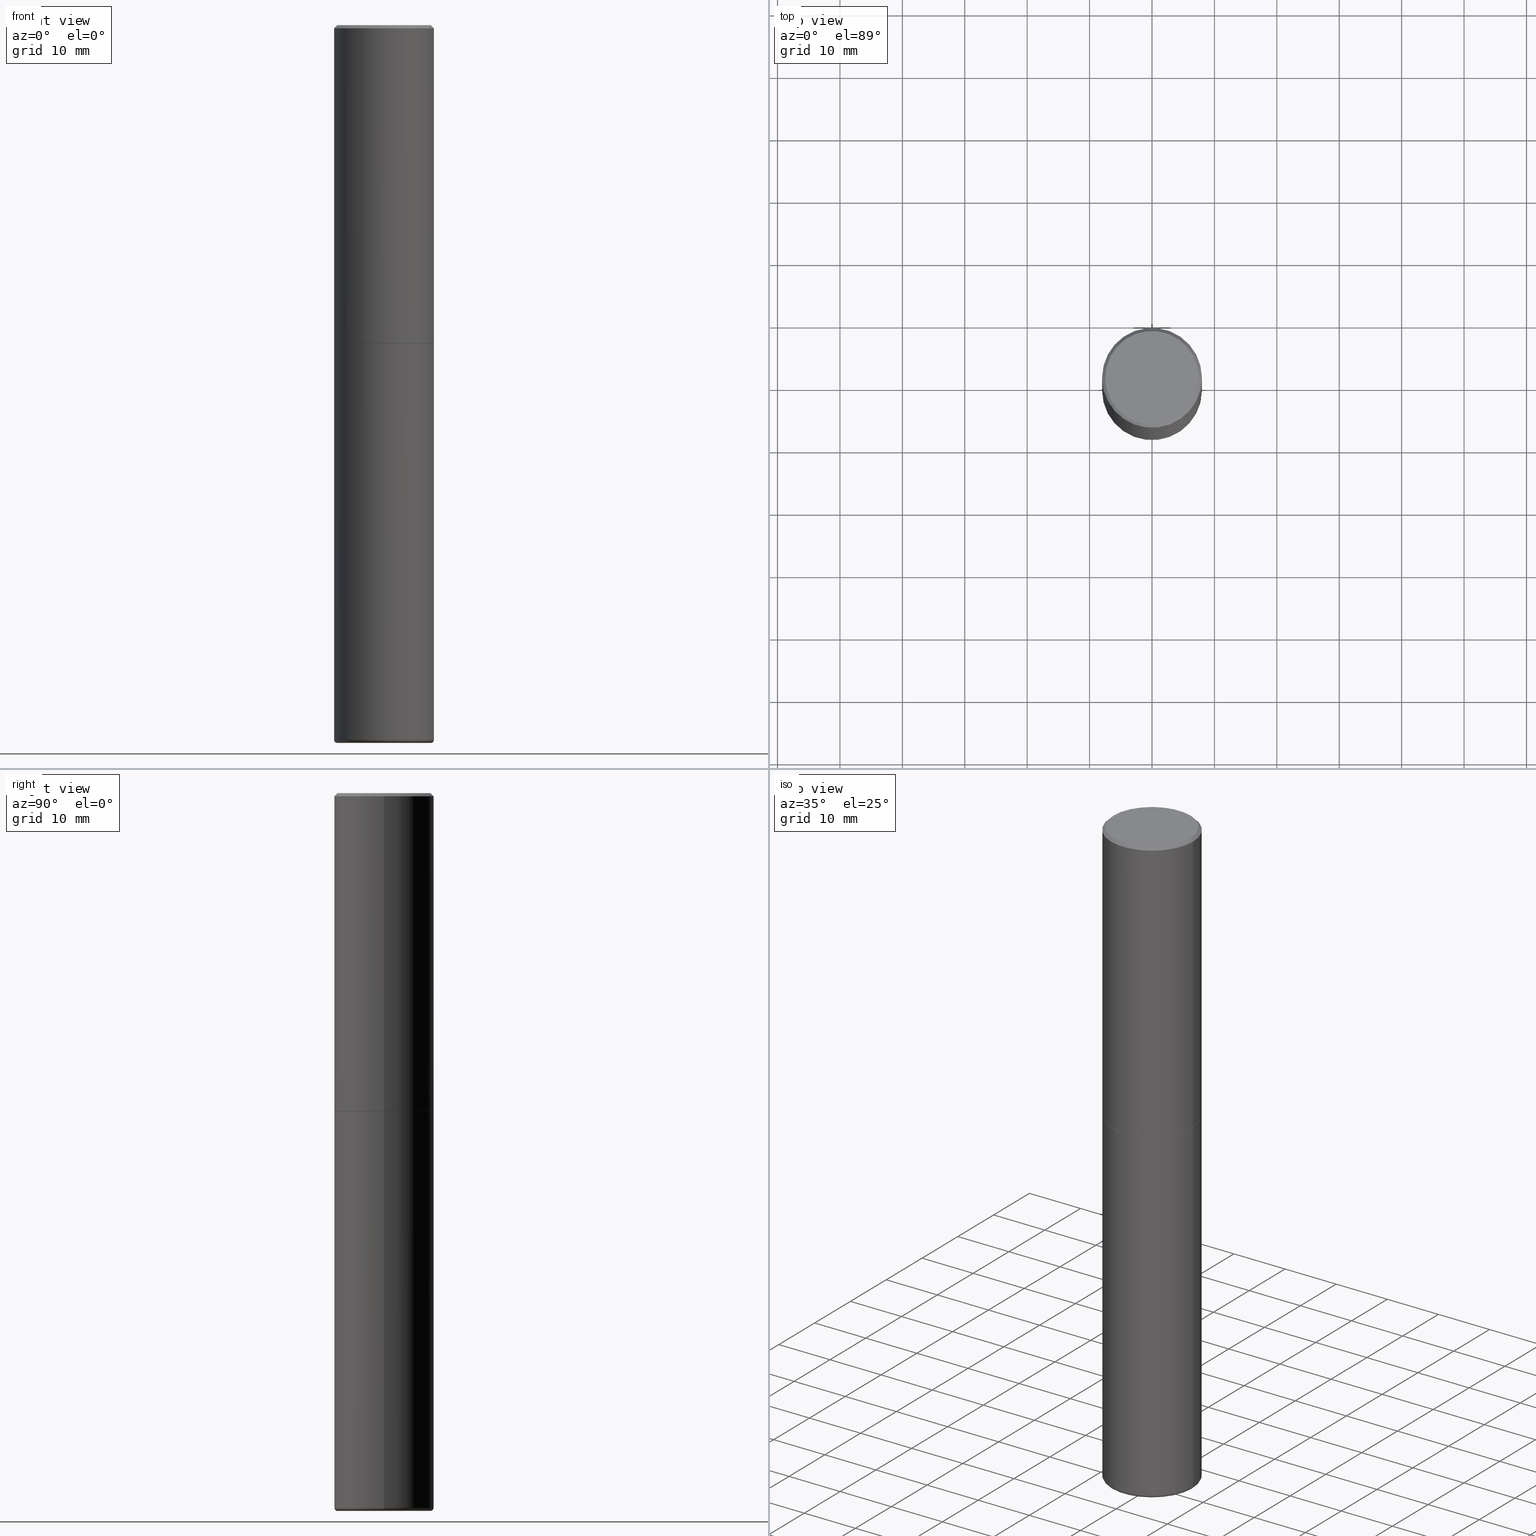
[diagram: canonical four-view strip — front | top / right | iso, engineering-drawing reading convention]
A machine part, canonical four-view strip (front | top / right | iso — engineering-drawing reading convention). The complete STEP part file that produces these views, byte-faithful:
ISO-10303-21;
HEADER;
FILE_DESCRIPTION (( 'STEP AP203' ),
    '1' );
FILE_NAME ('74778.STEP',
    '2024-05-02T19:17:48',
    ( '' ),
    ( '' ),
    'SwSTEP 2.0',
    'SolidWorks 2023',
    '' );
FILE_SCHEMA (( 'CONFIG_CONTROL_DESIGN' ));
ENDSEC;

DATA;
#1 = CLOSED_SHELL ( 'NONE', ( #200, #348, #6, #238, #89, #167 ) ) ;
#2 = LOCAL_TIME ( 15, 17, 48.00000000000000000, #401 ) ;
#3 = LINE ( 'NONE', #349, #84 ) ;
#4 = ORIENTED_EDGE ( 'NONE', *, *, #50, .F. ) ;
#5 = DESIGN_CONTEXT ( 'detailed design', #267, 'design' ) ;
#6 = ADVANCED_FACE ( 'NONE', ( #291 ), #327, .F. ) ;
#7 = FACE_OUTER_BOUND ( 'NONE', #158, .T. ) ;
#8 = CARTESIAN_POINT ( 'NONE',  ( -0.3149499999999996747, -1.350139438109458461E-14, -4.507900000000000240 ) ) ;
#9 = LINE ( 'NONE', #214, #45 ) ;
#10 = CARTESIAN_POINT ( 'NONE',  ( 1.107210456688382074E-28, -1.580803090974622074E-14, -4.527599999999998737 ) ) ;
#11 = VERTEX_POINT ( 'NONE', #8 ) ;
#12 = CIRCLE ( 'NONE', #87, 0.2949499999999997679 ) ;
#13 = SECURITY_CLASSIFICATION ( '', '', #334 ) ;
#14 = EDGE_CURVE ( 'NONE', #262, #311, #381, .T. ) ;
#15 = APPROVAL_STATUS ( 'not_yet_approved' ) ;
#16 = EDGE_CURVE ( 'NONE', #122, #355, #128, .T. ) ;
#17 = CIRCLE ( 'NONE', #251, 0.01969999999999931528 ) ;
#18 = CC_DESIGN_DATE_AND_TIME_ASSIGNMENT ( #366, #299, ( #85 ) ) ;
#19 = SHAPE_DEFINITION_REPRESENTATION ( #377, #82 ) ;
#20 = CARTESIAN_POINT ( 'NONE',  ( 4.890937612370289799E-31, -6.982962677686315028E-17, -0.02000000000000006981 ) ) ;
#21 = CLOSED_SHELL ( 'NONE', ( #306, #164, #336, #143, #274, #156, #66, #177 ) ) ;
#22 = CONICAL_SURFACE ( 'NONE', #98, 0.3149499999999999522, 0.7853981633974469467 ) ;
#23 = LOCAL_TIME ( 15, 17, 48.00000000000000000, #198 ) ;
#24 = APPROVAL ( #342, 'UNSPECIFIED' ) ;
#25 = CARTESIAN_POINT ( 'NONE',  ( -0.3139500000000000068, -4.779796461344316734E-15, -2.007899999999999796 ) ) ;
#26 = EDGE_LOOP ( 'NONE', ( #383, #114, #231, #233 ) ) ;
#27 = ORIENTED_EDGE ( 'NONE', *, *, #389, .T. ) ;
#28 = ORIENTED_EDGE ( 'NONE', *, *, #116, .F. ) ;
#29 = AXIS2_PLACEMENT_3D ( 'NONE', #100, #362, #33 ) ;
#30 = LINE ( 'NONE', #258, #216 ) ;
#31 = ORIENTED_EDGE ( 'NONE', *, *, #389, .F. ) ;
#32 = DIRECTION ( 'NONE',  ( -2.445468806185136597E-29, 3.491481338843145583E-15, 1.000000000000000000 ) ) ;
#33 = DIRECTION ( 'NONE',  ( -1.000000000000000000, 6.982962677686265922E-15, -4.876176775795935793E-29 ) ) ;
#34 = CARTESIAN_POINT ( 'NONE',  ( -0.2952500000000000124, -1.360577393175455947E-14, -4.527599999999998737 ) ) ;
#35 = DIRECTION ( 'NONE',  ( -2.445468806185136877E-29, 3.491481338843145188E-15, 1.000000000000000000 ) ) ;
#36 = DIRECTION ( 'NONE',  ( 0.000000000000000000, 0.000000000000000000, 1.000000000000000000 ) ) ;
#37 = AXIS2_PLACEMENT_3D ( 'NONE', #69, #329, #127 ) ;
#38 = APPROVAL_PERSON_ORGANIZATION ( #305, #374, #406 ) ;
#39 = FACE_OUTER_BOUND ( 'NONE', #67, .T. ) ;
#40 = FACE_OUTER_BOUND ( 'NONE', #385, .T. ) ;
#41 = DIRECTION ( 'NONE',  ( -2.445468806185136597E-29, 3.491481338843145583E-15, 1.000000000000000000 ) ) ;
#42 = PERSON_AND_ORGANIZATION ( #195, #304 ) ;
#43 = EDGE_CURVE ( 'NONE', #311, #262, #332, .T. ) ;
#44 = PERSON_AND_ORGANIZATION ( #195, #304 ) ;
#45 = VECTOR ( 'NONE', #248, 39.37007874015748143 ) ;
#46 = CARTESIAN_POINT ( 'NONE',  ( 4.910256815939135870E-29, -7.010545380263151710E-15, -2.007899999999999796 ) ) ;
#47 = CARTESIAN_POINT ( 'NONE',  ( -0.3139500000000000068, -4.774498006996093543E-15, -2.007899999999999796 ) ) ;
#48 = AXIS2_PLACEMENT_3D ( 'NONE', #229, #399, #144 ) ;
#49 = DIRECTION ( 'NONE',  ( 1.000000000000000000, -6.982962677686265922E-15, 4.876176775795935232E-29 ) ) ;
#50 = EDGE_CURVE ( 'NONE', #56, #186, #204, .T. ) ;
#51 = CC_DESIGN_PERSON_AND_ORGANIZATION_ASSIGNMENT ( #166, #73, ( #124 ) ) ;
#52 = PERSON_AND_ORGANIZATION ( #195, #304 ) ;
#53 = DIRECTION ( 'NONE',  ( 1.000000000000000000, -6.982962677686266711E-15, 0.000000000000000000 ) ) ;
#54 = EDGE_LOOP ( 'NONE', ( #228, #217, #88, #160 ) ) ;
#55 = FACE_OUTER_BOUND ( 'NONE', #324, .T. ) ;
#56 = VERTEX_POINT ( 'NONE', #163 ) ;
#57 = DIRECTION ( 'NONE',  ( 1.000000000000000000, -6.982962677686269866E-15, 0.000000000000000000 ) ) ;
#58 = EDGE_LOOP ( 'NONE', ( #301, #221 ) ) ;
#59 = EDGE_CURVE ( 'NONE', #150, #416, #12, .T. ) ;
#60 = DIRECTION ( 'NONE',  ( -2.445468806185136597E-29, 3.491481338843145583E-15, 1.000000000000000000 ) ) ;
#61 = ORIENTED_EDGE ( 'NONE', *, *, #132, .F. ) ;
#62 = AXIS2_PLACEMENT_3D ( 'NONE', #361, #149, #86 ) ;
#63 = LOCAL_TIME ( 15, 17, 48.00000000000000000, #113 ) ;
#64 = CARTESIAN_POINT ( 'NONE',  ( 0.000000000000000000, 0.000000000000000000, 0.000000000000000000 ) ) ;
#65 = ORIENTED_EDGE ( 'NONE', *, *, #325, .F. ) ;
#66 = ADVANCED_FACE ( 'NONE', ( #266 ), #398, .F. ) ;
#67 = EDGE_LOOP ( 'NONE', ( #249, #390 ) ) ;
#68 = DIRECTION ( 'NONE',  ( -1.000000000000000000, 6.982962677686266711E-15, 0.000000000000000000 ) ) ;
#69 = CARTESIAN_POINT ( 'NONE',  ( 1.102392883140197736E-28, -1.573924872737101586E-14, -4.507900000000000240 ) ) ;
#70 = ORIENTED_EDGE ( 'NONE', *, *, #413, .F. ) ;
#71 =( NAMED_UNIT ( * ) SI_UNIT ( $, .STERADIAN. ) SOLID_ANGLE_UNIT ( ) );
#72 = DIRECTION ( 'NONE',  ( -1.000000000000000000, 6.982962677686265922E-15, -4.876176775795935793E-29 ) ) ;
#73 = PERSON_AND_ORGANIZATION_ROLE ( 'design_supplier' ) ;
#74 = AXIS2_PLACEMENT_3D ( 'NONE', #278, #244, #49 ) ;
#75 = CARTESIAN_POINT ( 'NONE',  ( 4.910256815939135870E-29, -7.010545380263151710E-15, -2.007899999999999796 ) ) ;
#76 = CARTESIAN_POINT ( 'NONE',  ( 0.2952500000000000124, -1.780096845795788810E-14, -4.507900000000000240 ) ) ;
#77 = DIRECTION ( 'NONE',  ( -2.445468806185136597E-29, 3.491481338843145583E-15, 1.000000000000000000 ) ) ;
#78 = APPLICATION_PROTOCOL_DEFINITION ( 'international standard', 'config_control_design', 1994, #307 ) ;
#79 = AXIS2_PLACEMENT_3D ( 'NONE', #380, #312, #294 ) ;
#80 = DIRECTION ( 'NONE',  ( -2.445468806185136877E-29, 3.491481338843145188E-15, 1.000000000000000000 ) ) ;
#81 = APPROVAL_ROLE ( '' ) ;
#82 = ADVANCED_BREP_SHAPE_REPRESENTATION ( '74778', ( #250, #400, #411 ), #142 ) ;
#83 = CIRCLE ( 'NONE', #322, 0.3149500000000000077 ) ;
#84 = VECTOR ( 'NONE', #125, 39.37007874015748143 ) ;
#85 = PRODUCT_DEFINITION ( 'UNKNOWN', '', #124, #5 ) ;
#86 = DIRECTION ( 'NONE',  ( 1.000000000000000000, -6.982962677686266711E-15, 0.000000000000000000 ) ) ;
#87 = AXIS2_PLACEMENT_3D ( 'NONE', #137, #77, #276 ) ;
#88 = ORIENTED_EDGE ( 'NONE', *, *, #129, .T. ) ;
#89 = ADVANCED_FACE ( 'NONE', ( #279 ), #187, .T. ) ;
#90 = DIRECTION ( 'NONE',  ( -2.445468806185136597E-29, 3.491481338843145583E-15, 1.000000000000000000 ) ) ;
#91 = ORIENTED_EDGE ( 'NONE', *, *, #132, .T. ) ;
#92 = CARTESIAN_POINT ( 'NONE',  ( 1.102392883140197736E-28, -1.573924872737101586E-14, -4.507900000000000240 ) ) ;
#93 = ORIENTED_EDGE ( 'NONE', *, *, #254, .T. ) ;
#94 = DIRECTION ( 'NONE',  ( -2.445468806185136877E-29, 3.491481338843145188E-15, 1.000000000000000000 ) ) ;
#95 = VERTEX_POINT ( 'NONE', #260 ) ;
#96 = EDGE_CURVE ( 'NONE', #186, #56, #310, .T. ) ;
#97 = ORIENTED_EDGE ( 'NONE', *, *, #16, .F. ) ;
#98 = AXIS2_PLACEMENT_3D ( 'NONE', #20, #218, #68 ) ;
#99 = DIRECTION ( 'NONE',  ( 2.445468806185136597E-29, -3.491481338843145583E-15, -1.000000000000000000 ) ) ;
#100 = CARTESIAN_POINT ( 'NONE',  ( 4.910256815939135870E-29, -7.010545380263151710E-15, -2.007899999999999796 ) ) ;
#101 = CC_DESIGN_DATE_AND_TIME_ASSIGNMENT ( #105, #209, ( #13 ) ) ;
#102 = ORIENTED_EDGE ( 'NONE', *, *, #343, .T. ) ;
#103 = PERSON_AND_ORGANIZATION ( #195, #304 ) ;
#104 = DIRECTION ( 'NONE',  ( -2.445468806185136597E-29, 3.491481338843145583E-15, 1.000000000000000000 ) ) ;
#105 = DATE_AND_TIME ( #268, #170 ) ;
#106 = DIRECTION ( 'NONE',  ( -2.438088387897960049E-29, 3.491481338843145188E-15, 1.000000000000000000 ) ) ;
#107 = AXIS2_PLACEMENT_3D ( 'NONE', #414, #115, #72 ) ;
#108 = EDGE_CURVE ( 'NONE', #416, #150, #402, .T. ) ;
#109 = CARTESIAN_POINT ( 'NONE',  ( 0.2949499999999997679, -2.127023677808858891E-15, 1.835460370743323251E-16 ) ) ;
#110 = CARTESIAN_POINT ( 'NONE',  ( -4.488561081641444621E-45, 6.408475632635922878E-31, 1.835460370743176819E-16 ) ) ;
#111 = PERSON_AND_ORGANIZATION_ROLE ( 'creator' ) ;
#112 = CARTESIAN_POINT ( 'NONE',  ( 0.3149499999999996747, -1.793853282270830731E-14, -4.507900000000000240 ) ) ;
#113 = COORDINATED_UNIVERSAL_TIME_OFFSET ( 5, 0, .BEHIND. ) ;
#114 = ORIENTED_EDGE ( 'NONE', *, *, #213, .T. ) ;
#115 = DIRECTION ( 'NONE',  ( 2.438088387897960049E-29, -3.491481338843145188E-15, -1.000000000000000000 ) ) ;
#116 = EDGE_CURVE ( 'NONE', #95, #186, #270, .T. ) ;
#117 = APPROVAL ( #375, 'UNSPECIFIED' ) ;
#118 = VECTOR ( 'NONE', #35, 39.37007874015748143 ) ;
#119 = AXIS2_PLACEMENT_3D ( 'NONE', #76, #371, #273 ) ;
#120 = CARTESIAN_POINT ( 'NONE',  ( 4.907811347132950267E-29, -7.007053898924307914E-15, -2.006899999999999906 ) ) ;
#121 = DIRECTION ( 'NONE',  ( 1.000000000000000000, -6.982962677686267499E-15, 0.000000000000000000 ) ) ;
#122 = VERTEX_POINT ( 'NONE', #112 ) ;
#123 = AXIS2_PLACEMENT_3D ( 'NONE', #10, #131, #330 ) ;
#124 = PRODUCT_DEFINITION_FORMATION_WITH_SPECIFIED_SOURCE ( 'ANY', '', #240, .NOT_KNOWN. ) ;
#125 = DIRECTION ( 'NONE',  ( 0.7071067811866199593, -2.468850131083015945E-15, 0.7071067811864750752 ) ) ;
#126 = VERTEX_POINT ( 'NONE', #47 ) ;
#127 = DIRECTION ( 'NONE',  ( 1.000000000000000000, -6.982962677686260400E-15, 4.883557194083110659E-29 ) ) ;
#128 = LINE ( 'NONE', #259, #118 ) ;
#129 = EDGE_CURVE ( 'NONE', #150, #56, #174, .T. ) ;
#130 = DIRECTION ( 'NONE',  ( 1.000000000000000000, -6.982962677686269866E-15, 0.000000000000000000 ) ) ;
#131 = DIRECTION ( 'NONE',  ( -2.445468806185136597E-29, 3.491481338843145583E-15, 1.000000000000000000 ) ) ;
#132 = EDGE_CURVE ( 'NONE', #355, #321, #340, .T. ) ;
#133 = CIRCLE ( 'NONE', #308, 0.3149500000000000077 ) ;
#134 = CALENDAR_DATE ( 2024, 2, 5 ) ;
#135 = CARTESIAN_POINT ( 'NONE',  ( 1.107210456688382074E-28, -1.580803090974622074E-14, -4.527599999999998737 ) ) ;
#136 = APPLICATION_PROTOCOL_DEFINITION ( 'international standard', 'config_control_design', 1994, #267 ) ;
#137 = CARTESIAN_POINT ( 'NONE',  ( -4.488561081641444621E-45, 6.408475632635922878E-31, 1.835460370743176819E-16 ) ) ;
#138 = COORDINATED_UNIVERSAL_TIME_OFFSET ( 5, 0, .BEHIND. ) ;
#139 = CARTESIAN_POINT ( 'NONE',  ( 0.000000000000000000, 0.000000000000000000, 0.000000000000000000 ) ) ;
#140 = DIRECTION ( 'NONE',  ( 1.000000000000000000, -6.982962677686266711E-15, 0.000000000000000000 ) ) ;
#141 = VECTOR ( 'NONE', #391, 39.37007874015748143 ) ;
#142 =( GEOMETRIC_REPRESENTATION_CONTEXT ( 3 ) GLOBAL_UNCERTAINTY_ASSIGNED_CONTEXT ( ( #212 ) ) GLOBAL_UNIT_ASSIGNED_CONTEXT ( ( #405, #235, #71 ) ) REPRESENTATION_CONTEXT ( 'NONE', 'WORKASPACE' ) );
#143 = ADVANCED_FACE ( 'NONE', ( #172 ), #22, .T. ) ;
#144 = DIRECTION ( 'NONE',  ( 1.000000000000000000, -6.982962677686266711E-15, 0.000000000000000000 ) ) ;
#145 = DIRECTION ( 'NONE',  ( 1.000000000000000000, -6.982962677686265922E-15, 4.876176775795935793E-29 ) ) ;
#146 = AXIS2_PLACEMENT_3D ( 'NONE', #338, #365, #210 ) ;
#147 = VECTOR ( 'NONE', #417, 39.37007874015748143 ) ;
#148 = ORIENTED_EDGE ( 'NONE', *, *, #232, .F. ) ;
#149 = DIRECTION ( 'NONE',  ( -2.445468806185136597E-29, 3.491481338843145583E-15, 1.000000000000000000 ) ) ;
#150 = VERTEX_POINT ( 'NONE', #341 ) ;
#151 = DIRECTION ( 'NONE',  ( 1.000000000000000000, -6.982962677686266711E-15, 4.876176775795936353E-29 ) ) ;
#152 = ORIENTED_EDGE ( 'NONE', *, *, #129, .F. ) ;
#153 = CC_DESIGN_APPROVAL ( #117, ( #13 ) ) ;
#154 = CYLINDRICAL_SURFACE ( 'NONE', #79, 0.3149500000000001743 ) ;
#155 = EDGE_LOOP ( 'NONE', ( #418, #193, #288, #28 ) ) ;
#156 = ADVANCED_FACE ( 'NONE', ( #404 ), #263, .T. ) ;
#157 = DIRECTION ( 'NONE',  ( 1.000000000000000000, -6.982962677686266711E-15, 0.000000000000000000 ) ) ;
#158 = EDGE_LOOP ( 'NONE', ( #315, #388, #226, #70 ) ) ;
#159 = CARTESIAN_POINT ( 'NONE',  ( 4.907811347132950267E-29, -7.007053898924307914E-15, -2.006899999999999906 ) ) ;
#160 = ORIENTED_EDGE ( 'NONE', *, *, #50, .T. ) ;
#161 = AXIS2_PLACEMENT_3D ( 'NONE', #382, #190, #157 ) ;
#162 = PERSON_AND_ORGANIZATION_ROLE ( 'creator' ) ;
#163 = CARTESIAN_POINT ( 'NONE',  ( -0.3149499999999999522, 2.129454468560426178E-15, -0.02000000000000006981 ) ) ;
#164 = ADVANCED_FACE ( 'NONE', ( #376 ), #345, .T. ) ;
#165 = DIRECTION ( 'NONE',  ( 2.438088387897960049E-29, -3.491481338843145188E-15, -1.000000000000000000 ) ) ;
#166 = PERSON_AND_ORGANIZATION ( #195, #304 ) ;
#167 = ADVANCED_FACE ( 'NONE', ( #178 ), #281, .T. ) ;
#168 = DATE_AND_TIME ( #265, #23 ) ;
#169 = VECTOR ( 'NONE', #80, 39.37007874015748143 ) ;
#170 = LOCAL_TIME ( 15, 17, 48.00000000000000000, #138 ) ;
#171 = CC_DESIGN_PERSON_AND_ORGANIZATION_ASSIGNMENT ( #44, #162, ( #85 ) ) ;
#172 = FACE_OUTER_BOUND ( 'NONE', #54, .T. ) ;
#173 = DIRECTION ( 'NONE',  ( 1.000000000000000000, -6.982962677686266711E-15, 4.876176775795936353E-29 ) ) ;
#174 = LINE ( 'NONE', #208, #378 ) ;
#175 = AXIS2_PLACEMENT_3D ( 'NONE', #135, #264, #335 ) ;
#176 = LOCAL_TIME ( 15, 17, 48.00000000000000000, #194 ) ;
#177 = ADVANCED_FACE ( 'NONE', ( #39 ), #364, .F. ) ;
#178 = FACE_OUTER_BOUND ( 'NONE', #283, .T. ) ;
#179 = CIRCLE ( 'NONE', #62, 0.3139500000000000068 ) ;
#180 = CARTESIAN_POINT ( 'NONE',  ( 0.2952500000000000124, -1.786975064033309297E-14, -4.527599999999998737 ) ) ;
#181 = VERTEX_POINT ( 'NONE', #319 ) ;
#182 = DIRECTION ( 'NONE',  ( -2.445468806185136597E-29, 3.491481338843145583E-15, 1.000000000000000000 ) ) ;
#183 = ORIENTED_EDGE ( 'NONE', *, *, #309, .F. ) ;
#184 = ORIENTED_EDGE ( 'NONE', *, *, #224, .T. ) ;
#185 = CARTESIAN_POINT ( 'NONE',  ( 4.890937612370289799E-31, -6.982962677686315028E-17, -0.02000000000000006981 ) ) ;
#186 = VERTEX_POINT ( 'NONE', #284 ) ;
#187 = TOROIDAL_SURFACE ( 'NONE', #271, 0.2952500000000000124, 0.01969999999999934998 ) ;
#188 = CC_DESIGN_PERSON_AND_ORGANIZATION_ASSIGNMENT ( #199, #205, ( #240 ) ) ;
#189 = EDGE_LOOP ( 'NONE', ( #191, #318, #253, #183 ) ) ;
#190 = DIRECTION ( 'NONE',  ( -2.445468806185136597E-29, 3.491481338843145583E-15, 1.000000000000000000 ) ) ;
#191 = ORIENTED_EDGE ( 'NONE', *, *, #237, .F. ) ;
#192 = DIRECTION ( 'NONE',  ( -2.445468806185136597E-29, 3.491481338843145583E-15, 1.000000000000000000 ) ) ;
#193 = ORIENTED_EDGE ( 'NONE', *, *, #325, .T. ) ;
#194 = COORDINATED_UNIVERSAL_TIME_OFFSET ( 5, 0, .BEHIND. ) ;
#195 = PERSON ( 'UNSPECIFIED', 'UNSPECIFIED', 'UNSPECIFIED', ('UNSPECIFIED'), ('UNSPECIFIED'), ('UNSPECIFIED') ) ;
#196 = CARTESIAN_POINT ( 'NONE',  ( 2.059624841783562486E-15, 0.2949499999999997679, -9.380394023546260134E-16 ) ) ;
#197 = APPROVAL_PERSON_ORGANIZATION ( #337, #24, #395 ) ;
#198 = COORDINATED_UNIVERSAL_TIME_OFFSET ( 5, 0, .BEHIND. ) ;
#199 = PERSON_AND_ORGANIZATION ( #195, #304 ) ;
#200 = ADVANCED_FACE ( 'NONE', ( #40 ), #269, .T. ) ;
#201 = DIRECTION ( 'NONE',  ( 1.000000000000000000, -6.982962677686263555E-15, 0.000000000000000000 ) ) ;
#202 =( LENGTH_UNIT ( ) NAMED_UNIT ( * ) SI_UNIT ( $, .METRE. ) );
#203 = DIRECTION ( 'NONE',  ( -2.445468806185136597E-29, 3.491481338843145583E-15, 1.000000000000000000 ) ) ;
#204 = CIRCLE ( 'NONE', #206, 0.3149499999999999522 ) ;
#205 = PERSON_AND_ORGANIZATION_ROLE ( 'design_owner' ) ;
#206 = AXIS2_PLACEMENT_3D ( 'NONE', #372, #203, #140 ) ;
#207 = CIRCLE ( 'NONE', #415, 0.3149500000000000077 ) ;
#208 = CARTESIAN_POINT ( 'NONE',  ( -0.3149499999999999522, 2.129454468560426178E-15, -0.02000000000000006981 ) ) ;
#209 = DATE_TIME_ROLE ( 'classification_date' ) ;
#210 = DIRECTION ( 'NONE',  ( 1.000000000000000000, -6.982962677686266711E-15, 0.000000000000000000 ) ) ;
#211 = AXIS2_PLACEMENT_3D ( 'NONE', #159, #182, #121 ) ;
#212 = UNCERTAINTY_MEASURE_WITH_UNIT (LENGTH_MEASURE( 1.000000000000000082E-05 ), #405, 'distance_accuracy_value', 'NONE');
#213 = EDGE_CURVE ( 'NONE', #126, #181, #280, .T. ) ;
#214 = CARTESIAN_POINT ( 'NONE',  ( 0.3149499999999999522, -2.230543471175006661E-15, -0.02000000000000006981 ) ) ;
#215 = TOROIDAL_SURFACE ( 'NONE', #37, 0.2952500000000000124, 0.01969999999999934998 ) ;
#216 = VECTOR ( 'NONE', #94, 39.37007874015748143 ) ;
#217 = ORIENTED_EDGE ( 'NONE', *, *, #59, .F. ) ;
#218 = DIRECTION ( 'NONE',  ( 2.445468806185136597E-29, -3.491481338843145583E-15, -1.000000000000000000 ) ) ;
#219 = CARTESIAN_POINT ( 'NONE',  ( 1.102392883140197736E-28, -1.573924872737101586E-14, -4.507900000000000240 ) ) ;
#220 = ORIENTED_EDGE ( 'NONE', *, *, #43, .F. ) ;
#221 = ORIENTED_EDGE ( 'NONE', *, *, #213, .F. ) ;
#222 = CARTESIAN_POINT ( 'NONE',  ( -0.3149500000000002853, -1.300587416574145677E-15, -2.006899999999999906 ) ) ;
#223 = EDGE_LOOP ( 'NONE', ( #102, #350, #148, #297 ) ) ;
#224 = EDGE_CURVE ( 'NONE', #295, #95, #227, .T. ) ;
#225 = CARTESIAN_POINT ( 'NONE',  ( -0.2952500000000000124, -1.364137130003932155E-14, -4.507900000000000240 ) ) ;
#226 = ORIENTED_EDGE ( 'NONE', *, *, #282, .F. ) ;
#227 = CIRCLE ( 'NONE', #367, 0.3149500000000002853 ) ;
#228 = ORIENTED_EDGE ( 'NONE', *, *, #254, .F. ) ;
#229 = CARTESIAN_POINT ( 'NONE',  ( 4.890937612370289799E-31, -6.982962677686315028E-17, -0.02000000000000006981 ) ) ;
#230 = CARTESIAN_POINT ( 'NONE',  ( -0.3149500000000001743, 2.237854346276436774E-15, -1.549218606675783237E-29 ) ) ;
#231 = ORIENTED_EDGE ( 'NONE', *, *, #356, .T. ) ;
#232 = EDGE_CURVE ( 'NONE', #95, #295, #241, .T. ) ;
#233 = ORIENTED_EDGE ( 'NONE', *, *, #224, .F. ) ;
#234 = AXIS2_PLACEMENT_3D ( 'NONE', #46, #106, #145 ) ;
#235 =( NAMED_UNIT ( * ) PLANE_ANGLE_UNIT ( ) SI_UNIT ( $, .RADIAN. ) );
#236 = DIRECTION ( 'NONE',  ( -2.445468806185136597E-29, 3.491481338843145583E-15, 1.000000000000000000 ) ) ;
#237 = EDGE_CURVE ( 'NONE', #311, #11, #17, .T. ) ;
#238 = ADVANCED_FACE ( 'NONE', ( #55 ), #351, .T. ) ;
#239 = DIRECTION ( 'NONE',  ( -2.445468806185136597E-29, 3.491481338843145583E-15, 1.000000000000000000 ) ) ;
#240 = PRODUCT ( '74778', '74778', '', ( #339 ) ) ;
#241 = CIRCLE ( 'NONE', #211, 0.3149500000000002853 ) ;
#242 = DATE_AND_TIME ( #346, #63 ) ;
#243 = DIRECTION ( 'NONE',  ( -2.445468806185136597E-29, 3.491481338843145583E-15, 1.000000000000000000 ) ) ;
#244 = DIRECTION ( 'NONE',  ( -2.445468806185136597E-29, 3.491481338843145583E-15, 1.000000000000000000 ) ) ;
#245 = CC_DESIGN_PERSON_AND_ORGANIZATION_ASSIGNMENT ( #42, #300, ( #13 ) ) ;
#246 = LINE ( 'NONE', #230, #147 ) ;
#247 = ORIENTED_EDGE ( 'NONE', *, *, #309, .T. ) ;
#248 = DIRECTION ( 'NONE',  ( 0.7071067811865465735, -7.319954787623252890E-15, -0.7071067811865484609 ) ) ;
#249 = ORIENTED_EDGE ( 'NONE', *, *, #59, .T. ) ;
#250 = MANIFOLD_SOLID_BREP ( 'Body-Move/Copy2[1]', #1 ) ;
#251 = AXIS2_PLACEMENT_3D ( 'NONE', #225, #357, #290 ) ;
#252 = CC_DESIGN_SECURITY_CLASSIFICATION ( #13, ( #124 ) ) ;
#253 = ORIENTED_EDGE ( 'NONE', *, *, #413, .T. ) ;
#254 = EDGE_CURVE ( 'NONE', #416, #186, #9, .T. ) ;
#255 = CARTESIAN_POINT ( 'NONE',  ( 4.910256815939135870E-29, -7.010545380263151710E-15, -2.007899999999999796 ) ) ;
#256 = EDGE_LOOP ( 'NONE', ( #396, #93, #313, #152 ) ) ;
#257 = ORIENTED_EDGE ( 'NONE', *, *, #116, .T. ) ;
#258 = CARTESIAN_POINT ( 'NONE',  ( -0.3149500000000000077, 2.237854346276435590E-15, -1.549218606675782676E-29 ) ) ;
#259 = CARTESIAN_POINT ( 'NONE',  ( 0.3149500000000000077, -2.199284095337289871E-15, 1.535751875536930130E-29 ) ) ;
#260 = CARTESIAN_POINT ( 'NONE',  ( 0.3149500000000002853, -9.206337994261599363E-15, -2.006899999999999906 ) ) ;
#261 = LINE ( 'NONE', #25, #141 ) ;
#262 = VERTEX_POINT ( 'NONE', #180 ) ;
#263 = CONICAL_SURFACE ( 'NONE', #146, 0.3139500000000000068, 0.7853981633975507526 ) ;
#264 = DIRECTION ( 'NONE',  ( -2.445468806185136597E-29, 3.491481338843145583E-15, 1.000000000000000000 ) ) ;
#265 = CALENDAR_DATE ( 2024, 2, 5 ) ;
#266 = FACE_OUTER_BOUND ( 'NONE', #58, .T. ) ;
#267 = APPLICATION_CONTEXT ( 'configuration controlled 3d designs of mechanical parts and assemblies' ) ;
#268 = CALENDAR_DATE ( 2024, 2, 5 ) ;
#269 = CYLINDRICAL_SURFACE ( 'NONE', #373, 0.3149500000000000077 ) ;
#270 = LINE ( 'NONE', #408, #169 ) ;
#271 = AXIS2_PLACEMENT_3D ( 'NONE', #333, #41, #292 ) ;
#272 = CIRCLE ( 'NONE', #119, 0.01969999999999931528 ) ;
#273 = DIRECTION ( 'NONE',  ( 1.000000000000000000, -6.982962677686373207E-15, 0.000000000000000000 ) ) ;
#274 = ADVANCED_FACE ( 'NONE', ( #316 ), #154, .T. ) ;
#275 = CALENDAR_DATE ( 2024, 2, 5 ) ;
#276 = DIRECTION ( 'NONE',  ( 1.000000000000000000, -6.982962677686265922E-15, 4.874125435057325556E-29 ) ) ;
#277 = DIRECTION ( 'NONE',  ( 1.000000000000000000, -6.982962677686265922E-15, 4.874125435057325556E-29 ) ) ;
#278 = CARTESIAN_POINT ( 'NONE',  ( 0.000000000000000000, 0.000000000000000000, 0.000000000000000000 ) ) ;
#279 = FACE_OUTER_BOUND ( 'NONE', #189, .T. ) ;
#280 = CIRCLE ( 'NONE', #344, 0.3139500000000000068 ) ;
#281 = PLANE ( 'NONE',  #107 ) ;
#282 = EDGE_CURVE ( 'NONE', #122, #11, #133, .T. ) ;
#283 = EDGE_LOOP ( 'NONE', ( #403, #220 ) ) ;
#284 = CARTESIAN_POINT ( 'NONE',  ( 0.3149499999999999522, -2.230543471175006661E-15, -0.02000000000000006981 ) ) ;
#285 = DIRECTION ( 'NONE',  ( 1.000000000000000000, -6.982962677686267499E-15, 0.000000000000000000 ) ) ;
#286 = EDGE_LOOP ( 'NONE', ( #91, #27 ) ) ;
#287 = FACE_OUTER_BOUND ( 'NONE', #256, .T. ) ;
#288 = ORIENTED_EDGE ( 'NONE', *, *, #96, .F. ) ;
#289 = AXIS2_PLACEMENT_3D ( 'NONE', #75, #243, #201 ) ;
#290 = DIRECTION ( 'NONE',  ( -1.000000000000000000, 7.105427357600976615E-15, 0.000000000000000000 ) ) ;
#291 = FACE_OUTER_BOUND ( 'NONE', #286, .T. ) ;
#292 = DIRECTION ( 'NONE',  ( 1.000000000000000000, -6.982962677686260400E-15, 4.883557194083110659E-29 ) ) ;
#293 = DIMENSIONAL_EXPONENTS ( 1.000000000000000000, 0.000000000000000000, 0.000000000000000000, 0.000000000000000000, 0.000000000000000000, 0.000000000000000000, 0.000000000000000000 ) ;
#294 = DIRECTION ( 'NONE',  ( 1.000000000000000000, -6.982962677686265922E-15, 4.876176775795935232E-29 ) ) ;
#295 = VERTEX_POINT ( 'NONE', #222 ) ;
#296 = DIRECTION ( 'NONE',  ( -1.000000000000000000, 6.982962677686266711E-15, 0.000000000000000000 ) ) ;
#297 = ORIENTED_EDGE ( 'NONE', *, *, #356, .F. ) ;
#298 = AXIS2_PLACEMENT_3D ( 'NONE', #110, #239, #277 ) ;
#299 = DATE_TIME_ROLE ( 'creation_date' ) ;
#300 = PERSON_AND_ORGANIZATION_ROLE ( 'classification_officer' ) ;
#301 = ORIENTED_EDGE ( 'NONE', *, *, #343, .F. ) ;
#302 = LENGTH_MEASURE_WITH_UNIT ( LENGTH_MEASURE( 0.02539999999999999897 ), #202 );
#303 = AXIS2_PLACEMENT_3D ( 'NONE', #64, #192, #151 ) ;
#304 = ORGANIZATION ( 'UNSPECIFIED', 'UNSPECIFIED', '' ) ;
#305 = PERSON_AND_ORGANIZATION ( #195, #304 ) ;
#306 = ADVANCED_FACE ( 'NONE', ( #354 ), #347, .T. ) ;
#307 = APPLICATION_CONTEXT ( 'configuration controlled 3d designs of mechanical parts and assemblies' ) ;
#308 = AXIS2_PLACEMENT_3D ( 'NONE', #92, #32, #57 ) ;
#309 = EDGE_CURVE ( 'NONE', #11, #122, #83, .T. ) ;
#310 = CIRCLE ( 'NONE', #48, 0.3149499999999999522 ) ;
#311 = VERTEX_POINT ( 'NONE', #34 ) ;
#312 = DIRECTION ( 'NONE',  ( -2.445468806185136597E-29, 3.491481338843145583E-15, 1.000000000000000000 ) ) ;
#313 = ORIENTED_EDGE ( 'NONE', *, *, #96, .T. ) ;
#314 = EDGE_CURVE ( 'NONE', #126, #295, #261, .T. ) ;
#315 = ORIENTED_EDGE ( 'NONE', *, *, #14, .T. ) ;
#316 = FACE_OUTER_BOUND ( 'NONE', #317, .T. ) ;
#317 = EDGE_LOOP ( 'NONE', ( #65, #184, #257, #4 ) ) ;
#318 = ORIENTED_EDGE ( 'NONE', *, *, #43, .T. ) ;
#319 = CARTESIAN_POINT ( 'NONE',  ( 0.3139500000000000068, -9.202846512922754778E-15, -2.007899999999999796 ) ) ;
#320 = DIRECTION ( 'NONE',  ( 1.000000000000000000, -6.982962677686263555E-15, 0.000000000000000000 ) ) ;
#321 = VERTEX_POINT ( 'NONE', #326 ) ;
#322 = AXIS2_PLACEMENT_3D ( 'NONE', #219, #60, #130 ) ;
#323 = CC_DESIGN_APPROVAL ( #374, ( #124 ) ) ;
#324 = EDGE_LOOP ( 'NONE', ( #392, #247, #358, #31 ) ) ;
#325 = EDGE_CURVE ( 'NONE', #295, #56, #246, .T. ) ;
#326 = CARTESIAN_POINT ( 'NONE',  ( -0.3149500000000000077, -9.137042707540648986E-15, -2.007899999999999796 ) ) ;
#327 = PLANE ( 'NONE',  #29 ) ;
#328 = CC_DESIGN_PERSON_AND_ORGANIZATION_ASSIGNMENT ( #103, #111, ( #124 ) ) ;
#329 = DIRECTION ( 'NONE',  ( -2.445468806185136597E-29, 3.491481338843145583E-15, 1.000000000000000000 ) ) ;
#330 = DIRECTION ( 'NONE',  ( 1.000000000000000000, -6.982962677686273021E-15, 0.000000000000000000 ) ) ;
#331 = APPROVAL_DATE_TIME ( #369, #24 ) ;
#332 = CIRCLE ( 'NONE', #175, 0.2952500000000000124 ) ;
#333 = CARTESIAN_POINT ( 'NONE',  ( 1.102392883140197736E-28, -1.573924872737101586E-14, -4.507900000000000240 ) ) ;
#334 = SECURITY_CLASSIFICATION_LEVEL ( 'unclassified' ) ;
#335 = DIRECTION ( 'NONE',  ( 1.000000000000000000, -6.982962677686273021E-15, 0.000000000000000000 ) ) ;
#336 = ADVANCED_FACE ( 'NONE', ( #287 ), #394, .T. ) ;
#337 = PERSON_AND_ORGANIZATION ( #195, #304 ) ;
#338 = CARTESIAN_POINT ( 'NONE',  ( 4.910256815939135870E-29, -7.010545380263151710E-15, -2.007899999999999796 ) ) ;
#339 = MECHANICAL_CONTEXT ( 'NONE', #307, 'mechanical' ) ;
#340 = CIRCLE ( 'NONE', #289, 0.3149500000000000077 ) ;
#341 = CARTESIAN_POINT ( 'NONE',  ( -0.2949499999999997679, 2.094539655171994924E-15, 1.835460370743031619E-16 ) ) ;
#342 = APPROVAL_STATUS ( 'not_yet_approved' ) ;
#343 = EDGE_CURVE ( 'NONE', #181, #126, #179, .T. ) ;
#344 = AXIS2_PLACEMENT_3D ( 'NONE', #412, #236, #53 ) ;
#345 = CYLINDRICAL_SURFACE ( 'NONE', #74, 0.3149500000000001743 ) ;
#346 = CALENDAR_DATE ( 2024, 2, 5 ) ;
#347 = CONICAL_SURFACE ( 'NONE', #161, 0.3139500000000000068, 0.7853981633975507526 ) ;
#348 = ADVANCED_FACE ( 'NONE', ( #7 ), #215, .T. ) ;
#349 = CARTESIAN_POINT ( 'NONE',  ( 0.3139500000000000068, -9.202846512922754778E-15, -2.007899999999999796 ) ) ;
#350 = ORIENTED_EDGE ( 'NONE', *, *, #314, .T. ) ;
#351 = CYLINDRICAL_SURFACE ( 'NONE', #303, 0.3149500000000000077 ) ;
#352 = ORIENTED_EDGE ( 'NONE', *, *, #407, .T. ) ;
#353 = DIRECTION ( 'NONE',  ( -1.000000000000000000, 6.982962677686265922E-15, -4.876176775795935793E-29 ) ) ;
#354 = FACE_OUTER_BOUND ( 'NONE', #223, .T. ) ;
#355 = VERTEX_POINT ( 'NONE', #387 ) ;
#356 = EDGE_CURVE ( 'NONE', #181, #95, #3, .T. ) ;
#357 = DIRECTION ( 'NONE',  ( 7.105427357601001859E-15, 1.000000000000000000, -3.491481338843145583E-15 ) ) ;
#358 = ORIENTED_EDGE ( 'NONE', *, *, #16, .T. ) ;
#359 = CC_DESIGN_APPROVAL ( #24, ( #85 ) ) ;
#360 = PRODUCT_RELATED_PRODUCT_CATEGORY ( 'detail', '', ( #240 ) ) ;
#361 = CARTESIAN_POINT ( 'NONE',  ( 4.910256815939135870E-29, -7.010545380263151710E-15, -2.007899999999999796 ) ) ;
#362 = DIRECTION ( 'NONE',  ( 2.438088387897960049E-29, -3.491481338843145188E-15, -1.000000000000000000 ) ) ;
#363 = DIRECTION ( 'NONE',  ( 1.000000000000000000, 0.000000000000000000, 0.000000000000000000 ) ) ;
#364 = PLANE ( 'NONE',  #393 ) ;
#365 = DIRECTION ( 'NONE',  ( -2.445468806185136597E-29, 3.491481338843145583E-15, 1.000000000000000000 ) ) ;
#366 = DATE_AND_TIME ( #275, #2 ) ;
#367 = AXIS2_PLACEMENT_3D ( 'NONE', #120, #90, #285 ) ;
#368 = DIRECTION ( 'NONE',  ( -0.7071067811865465735, 2.468850131082246805E-15, -0.7071067811865484609 ) ) ;
#369 = DATE_AND_TIME ( #134, #176 ) ;
#370 = CARTESIAN_POINT ( 'NONE',  ( 0.000000000000000000, 0.000000000000000000, 0.000000000000000000 ) ) ;
#371 = DIRECTION ( 'NONE',  ( -6.982962677686266711E-15, -1.000000000000000000, 3.491481338843145583E-15 ) ) ;
#372 = CARTESIAN_POINT ( 'NONE',  ( 4.890937612370289799E-31, -6.982962677686315028E-17, -0.02000000000000006981 ) ) ;
#373 = AXIS2_PLACEMENT_3D ( 'NONE', #370, #104, #173 ) ;
#374 = APPROVAL ( #15, 'UNSPECIFIED' ) ;
#375 = APPROVAL_STATUS ( 'not_yet_approved' ) ;
#376 = FACE_OUTER_BOUND ( 'NONE', #155, .T. ) ;
#377 = PRODUCT_DEFINITION_SHAPE ( 'NONE', 'NONE',  #85 ) ;
#378 = VECTOR ( 'NONE', #368, 39.37007874015748143 ) ;
#379 = APPROVAL_PERSON_ORGANIZATION ( #52, #117, #81 ) ;
#380 = CARTESIAN_POINT ( 'NONE',  ( 0.000000000000000000, 0.000000000000000000, 0.000000000000000000 ) ) ;
#381 = CIRCLE ( 'NONE', #123, 0.2952500000000000124 ) ;
#382 = CARTESIAN_POINT ( 'NONE',  ( 4.910256815939135870E-29, -7.010545380263151710E-15, -2.007899999999999796 ) ) ;
#383 = ORIENTED_EDGE ( 'NONE', *, *, #314, .F. ) ;
#384 = DIRECTION ( 'NONE',  ( -2.445468806185136597E-29, 3.491481338843145583E-15, 1.000000000000000000 ) ) ;
#385 = EDGE_LOOP ( 'NONE', ( #386, #352, #61, #97 ) ) ;
#386 = ORIENTED_EDGE ( 'NONE', *, *, #282, .T. ) ;
#387 = CARTESIAN_POINT ( 'NONE',  ( 0.3149500000000000077, -9.209829475600440793E-15, -2.007899999999999796 ) ) ;
#388 = ORIENTED_EDGE ( 'NONE', *, *, #237, .T. ) ;
#389 = EDGE_CURVE ( 'NONE', #321, #355, #207, .T. ) ;
#390 = ORIENTED_EDGE ( 'NONE', *, *, #108, .T. ) ;
#391 = DIRECTION ( 'NONE',  ( -0.7071067811866199593, 7.493145998870616062E-15, 0.7071067811864750752 ) ) ;
#392 = ORIENTED_EDGE ( 'NONE', *, *, #407, .F. ) ;
#393 = AXIS2_PLACEMENT_3D ( 'NONE', #196, #165, #353 ) ;
#394 = CONICAL_SURFACE ( 'NONE', #410, 0.3149499999999999522, 0.7853981633974469467 ) ;
#395 = APPROVAL_ROLE ( '' ) ;
#396 = ORIENTED_EDGE ( 'NONE', *, *, #108, .F. ) ;
#397 = APPROVAL_DATE_TIME ( #168, #374 ) ;
#398 = PLANE ( 'NONE',  #234 ) ;
#399 = DIRECTION ( 'NONE',  ( -2.445468806185136597E-29, 3.491481338843145583E-15, 1.000000000000000000 ) ) ;
#400 = MANIFOLD_SOLID_BREP ( 'Body-Move/Copy2[2]', #21 ) ;
#401 = COORDINATED_UNIVERSAL_TIME_OFFSET ( 5, 0, .BEHIND. ) ;
#402 = CIRCLE ( 'NONE', #298, 0.2949499999999997679 ) ;
#403 = ORIENTED_EDGE ( 'NONE', *, *, #14, .F. ) ;
#404 = FACE_OUTER_BOUND ( 'NONE', #26, .T. ) ;
#405 =( CONVERSION_BASED_UNIT ( 'INCH', #302 ) LENGTH_UNIT ( ) NAMED_UNIT ( #293 ) );
#406 = APPROVAL_ROLE ( '' ) ;
#407 = EDGE_CURVE ( 'NONE', #11, #321, #30, .T. ) ;
#408 = CARTESIAN_POINT ( 'NONE',  ( 0.3149500000000001743, -2.199284095337290660E-15, 1.535751875536930690E-29 ) ) ;
#409 = APPROVAL_DATE_TIME ( #242, #117 ) ;
#410 = AXIS2_PLACEMENT_3D ( 'NONE', #185, #99, #296 ) ;
#411 = AXIS2_PLACEMENT_3D ( 'NONE', #139, #36, #363 ) ;
#412 = CARTESIAN_POINT ( 'NONE',  ( 4.910256815939135870E-29, -7.010545380263151710E-15, -2.007899999999999796 ) ) ;
#413 = EDGE_CURVE ( 'NONE', #262, #122, #272, .T. ) ;
#414 = CARTESIAN_POINT ( 'NONE',  ( 1.692275825353211781E-28, -7.429561831938046296E-15, -4.527599999999998737 ) ) ;
#415 = AXIS2_PLACEMENT_3D ( 'NONE', #255, #384, #320 ) ;
#416 = VERTEX_POINT ( 'NONE', #109 ) ;
#417 = DIRECTION ( 'NONE',  ( -2.445468806185136877E-29, 3.491481338843145188E-15, 1.000000000000000000 ) ) ;
#418 = ORIENTED_EDGE ( 'NONE', *, *, #232, .T. ) ;
ENDSEC;
END-ISO-10303-21;
